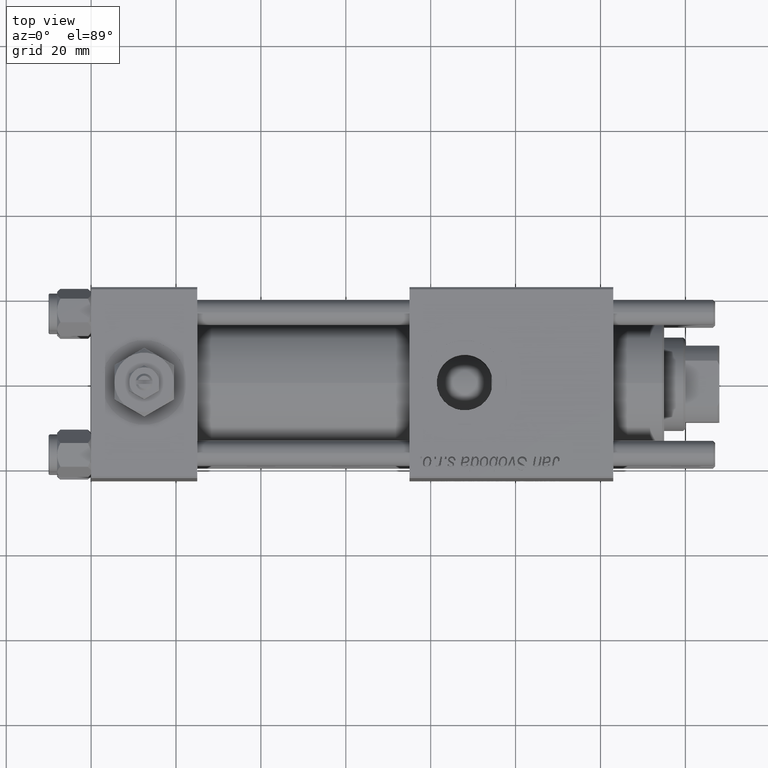
[diagram: clean part render]
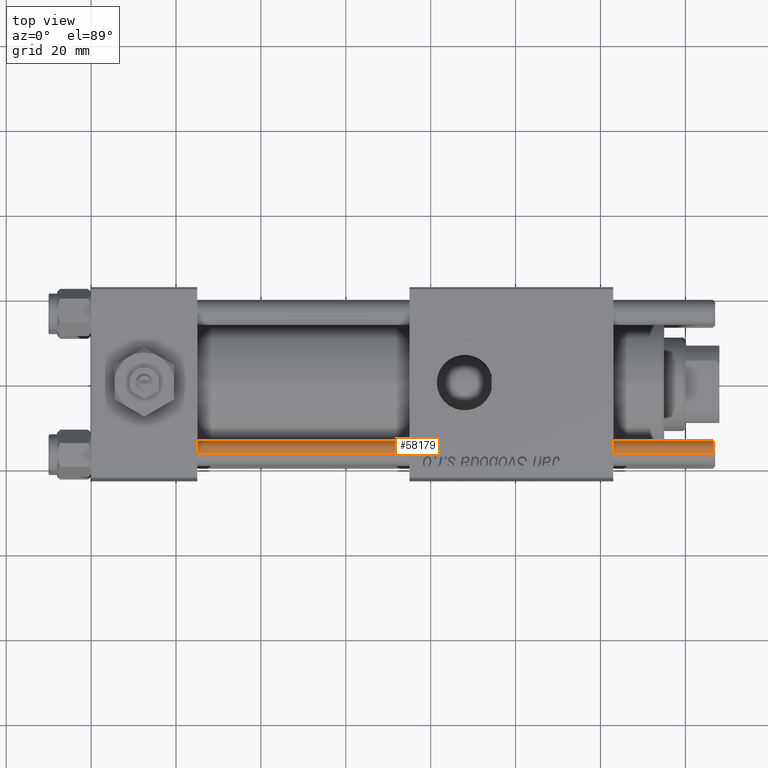
[diagram: same view with one face highlighted and labeled with its STEP entity id]
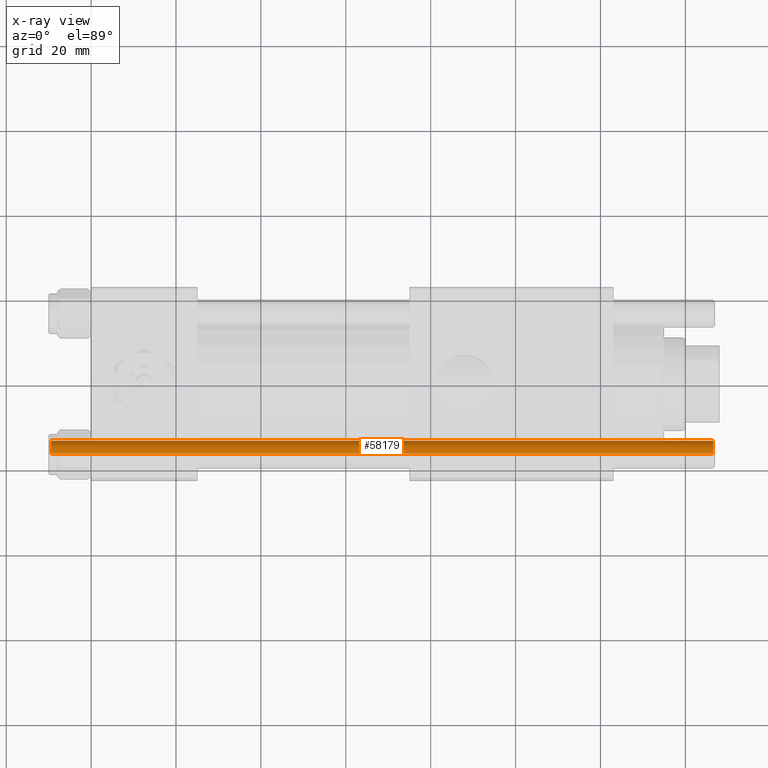
[diagram: x-ray of the same camera — body ghosted, the highlighted face saturated]
A machine part, top view. The second image highlights one B-rep face of the part: STEP entity #58179.
The next image is the same camera in x-ray: the body ghosted, the highlighted face saturated — about 0% of this face is hidden behind the body in this view.
In plain terms, the highlighted cylindrical surface (edge-blend (fillet) strip) has radius 3 mm, axis along (-1, 0, -0).
Its self-contained STEP definition (entity closure, byte-faithful):
#330 = CIRCLE ( 'NONE', #40852, 3.000000000000000444 ) ;
#687 = CYLINDRICAL_SURFACE ( 'NONE', #20490, 3.000000000000000444 ) ;
#924 = VECTOR ( 'NONE', #56986, 1000.000000000000000 ) ;
#3146 = DIRECTION ( 'NONE',  ( 1.000000000000000000, 0.000000000000000000, 0.000000000000000000 ) ) ;
#5346 = EDGE_CURVE ( 'NONE', #11805, #52071, #330, .T. ) ;
#8170 = CARTESIAN_POINT ( 'NONE',  ( 3.000000000000000444, 3.673940397442060361E-16, 156.5000000000000284 ) ) ;
#9765 = CARTESIAN_POINT ( 'NONE',  ( 0.000000000000000000, 0.000000000000000000, 0.4999999999999726885 ) ) ;
#11277 = CARTESIAN_POINT ( 'NONE',  ( 0.000000000000000000, 0.000000000000000000, 157.0000000000000000 ) ) ;
#11587 = CARTESIAN_POINT ( 'NONE',  ( 3.000000000000000444, 3.673940397442060361E-16, 0.4999999999999726885 ) ) ;
#11805 = VERTEX_POINT ( 'NONE', #20062 ) ;
#13445 = VERTEX_POINT ( 'NONE', #8170 ) ;
#18227 = CARTESIAN_POINT ( 'NONE',  ( -3.000000000000000444, 0.000000000000000000, 156.5000000000000284 ) ) ;
#18748 = FACE_OUTER_BOUND ( 'NONE', #56480, .T. ) ;
#20062 = CARTESIAN_POINT ( 'NONE',  ( -3.000000000000000444, 0.000000000000000000, 0.4999999999999726885 ) ) ;
#20490 = AXIS2_PLACEMENT_3D ( 'NONE', #11277, #37085, #29329 ) ;
#21299 = LINE ( 'NONE', #39360, #35101 ) ;
#24463 = VERTEX_POINT ( 'NONE', #18227 ) ;
#24523 = ORIENTED_EDGE ( 'NONE', *, *, #32178, .F. ) ;
#24667 = DIRECTION ( 'NONE',  ( 1.000000000000000000, 0.000000000000000000, 0.000000000000000000 ) ) ;
#27838 = DIRECTION ( 'NONE',  ( -0.000000000000000000, -0.000000000000000000, 1.000000000000000000 ) ) ;
#29329 = DIRECTION ( 'NONE',  ( -1.000000000000000000, 0.000000000000000000, 0.000000000000000000 ) ) ;
#32178 = EDGE_CURVE ( 'NONE', #13445, #52071, #52544, .T. ) ;
#32962 = CARTESIAN_POINT ( 'NONE',  ( 0.000000000000000000, 0.000000000000000000, 156.5000000000000284 ) ) ;
#35101 = VECTOR ( 'NONE', #57421, 1000.000000000000000 ) ;
#37085 = DIRECTION ( 'NONE',  ( -0.000000000000000000, -0.000000000000000000, -1.000000000000000000 ) ) ;
#38162 = EDGE_CURVE ( 'NONE', #24463, #11805, #21299, .T. ) ;
#39360 = CARTESIAN_POINT ( 'NONE',  ( -3.000000000000000444, 0.000000000000000000, 157.0000000000000000 ) ) ;
#40801 = EDGE_CURVE ( 'NONE', #13445, #24463, #45585, .T. ) ;
#40852 = AXIS2_PLACEMENT_3D ( 'NONE', #9765, #27838, #3146 ) ;
#43031 = DIRECTION ( 'NONE',  ( 0.000000000000000000, 0.000000000000000000, -1.000000000000000000 ) ) ;
#43742 = AXIS2_PLACEMENT_3D ( 'NONE', #32962, #43031, #24667 ) ;
#45530 = ORIENTED_EDGE ( 'NONE', *, *, #40801, .T. ) ;
#45585 = CIRCLE ( 'NONE', #43742, 3.000000000000000444 ) ;
#49617 = ORIENTED_EDGE ( 'NONE', *, *, #38162, .T. ) ;
#51838 = ORIENTED_EDGE ( 'NONE', *, *, #5346, .T. ) ;
#52071 = VERTEX_POINT ( 'NONE', #11587 ) ;
#52544 = LINE ( 'NONE', #53625, #924 ) ;
#53625 = CARTESIAN_POINT ( 'NONE',  ( 3.000000000000000444, 3.673940397442060361E-16, 157.0000000000000000 ) ) ;
#56480 = EDGE_LOOP ( 'NONE', ( #24523, #45530, #49617, #51838 ) ) ;
#56986 = DIRECTION ( 'NONE',  ( -0.000000000000000000, -0.000000000000000000, -1.000000000000000000 ) ) ;
#57421 = DIRECTION ( 'NONE',  ( -0.000000000000000000, -0.000000000000000000, -1.000000000000000000 ) ) ;
#58179 = ADVANCED_FACE ( 'NONE', ( #18748 ), #687, .T. ) ;